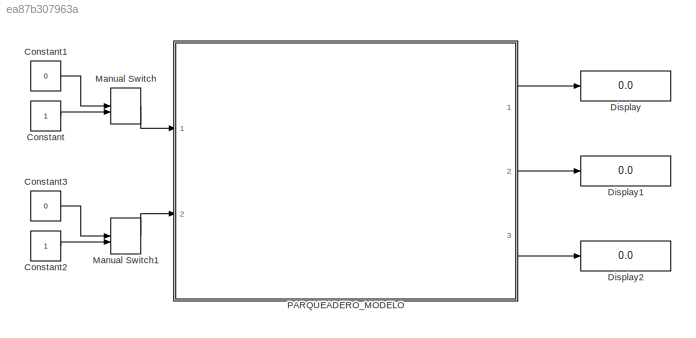
MODEL slx_ea87b307963a
KIND model
CONFIG AbsTol = auto
CONFIG EnableMultiTasking = off
CONFIG FixedStep = auto
CONFIG MaxStep = auto
CONFIG MinStep = auto
CONFIG RelTol = 1e-3
CONFIG SampleTimeConstraint = Unconstrained
CONFIG SolverName = VariableStepAuto
CONFIG StartTime = 0.0
CONFIG StopTime = inf
BLOCK [Constant] Constant
BLOCK [Constant] Constant1
  Value = 0
BLOCK [Constant] Constant2
BLOCK [Constant] Constant3
  Value = 0
BLOCK [Display] Display
  Decimation = 1
  Ports = [1]
BLOCK [Display] Display1
  Decimation = 1
  Ports = [1]
BLOCK [Display] Display2
  Decimation = 1
  Ports = [1]
BLOCK [ManualSwitch] Manual Switch
BLOCK [ManualSwitch] Manual Switch1
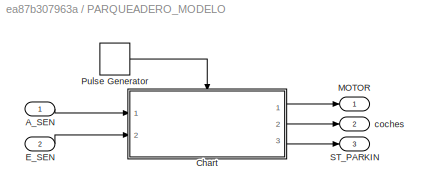
BLOCK [SubSystem] PARQUEADERO_MODELO 
  Ports = [2, 3]
  RequestExecContextInheritance = off
BLOCK [Inport] PARQUEADERO_MODELO /A_SEN
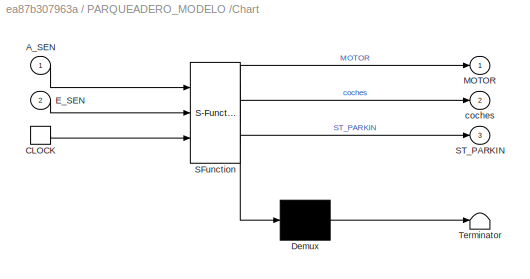
BLOCK [SubSystem] PARQUEADERO_MODELO /Chart
  ErrorFcn = Stateflow.Translate.translate
  PermitHierarchicalResolution = ExplicitOnly
  Ports = [2, 3, 0, 1]
  RequestExecContextInheritance = off
  SFBlockType = Chart
  TreatAsAtomicUnit = on
BLOCK [Demux] PARQUEADERO_MODELO /Chart/ Demux 
  Outputs = 1
  Ports = [1, 1]
BLOCK [S-Function] PARQUEADERO_MODELO /Chart/ SFunction 
  EnableBusSupport = on
  FunctionName = sf_sfun
  PortCounts = [3 4]
  Ports = [3, 4]
  SFcnIsStateOwnerBlock = off
  SFunctionDeploymentMode = off
  Tag = Stateflow S-Function 3
BLOCK [Terminator] PARQUEADERO_MODELO /Chart/ Terminator 
BLOCK [Inport] PARQUEADERO_MODELO /Chart/A_SEN
BLOCK [TriggerPort] PARQUEADERO_MODELO /Chart/CLOCK
  Ports = [0, 1]
  ShowOutputPort = on
  StatesWhenEnabling = held
  TriggerType = either
  VariantControl = (inherit)
BLOCK [Inport] PARQUEADERO_MODELO /Chart/E_SEN
  Port = 2
BLOCK [Outport] PARQUEADERO_MODELO /Chart/MOTOR
BLOCK [Outport] PARQUEADERO_MODELO /Chart/ST_PARKIN
  Port = 3
BLOCK [Outport] PARQUEADERO_MODELO /Chart/coches
  Port = 2
BLOCK [Inport] PARQUEADERO_MODELO /E_SEN
  Port = 2
BLOCK [Outport] PARQUEADERO_MODELO /MOTOR
BLOCK [DiscretePulseGenerator] PARQUEADERO_MODELO /Pulse Generator
  Period = 0.1
  Ports = [0, 1]
  PulseType = Time based
  PulseWidth = 5
BLOCK [Outport] PARQUEADERO_MODELO /ST_PARKIN
  Port = 3
BLOCK [Outport] PARQUEADERO_MODELO /coches
  Port = 2
LINE Constant1:1 -> Manual Switch:1
LINE Constant2:1 -> Manual Switch1:2
LINE Constant3:1 -> Manual Switch1:1
LINE Constant:1 -> Manual Switch:2
LINE Manual Switch1:1 -> PARQUEADERO_MODELO :2
LINE Manual Switch:1 -> PARQUEADERO_MODELO :1
LINE PARQUEADERO_MODELO /A_SEN:1 -> PARQUEADERO_MODELO /Chart:1
LINE PARQUEADERO_MODELO /Chart:1 -> PARQUEADERO_MODELO /MOTOR:1
LINE PARQUEADERO_MODELO /Chart:2 -> PARQUEADERO_MODELO /coches:1
LINE PARQUEADERO_MODELO /Chart:3 -> PARQUEADERO_MODELO /ST_PARKIN:1
LINE PARQUEADERO_MODELO /E_SEN:1 -> PARQUEADERO_MODELO /Chart:2
LINE PARQUEADERO_MODELO /Pulse Generator:1 -> PARQUEADERO_MODELO /Chart:trigger
LINE PARQUEADERO_MODELO :1 -> Display:1
LINE PARQUEADERO_MODELO :2 -> Display1:1
LINE PARQUEADERO_MODELO :3 -> Display2:1
CHART PARQUEADERO_MODELO
/Chart states=11 transitions=14
  STATE_LABEL 'inicio_\nentry:\nnumero_coches=0;\ncoches=0;\nMOTOR=0;\nST_PARKIN=1;\nON_OFF=1;'
  STATE_LABEL 'OCUPADO\n\n'
  STATE_LABEL 'inicio\nentry:\nST_PARKIN=0;\nMOTOR=0;'
  STATE_LABEL 'RESTAR_COCHES\nentry:\nnumero_coches=numero_coches-1;\ncoches=numero_coches;'
  STATE_LABEL 'PASO_LIBRE\nentry:\nON_OFF=1;'
  STATE_LABEL '[E_SEN==1]'
  STATE_LABEL '[E_SEN==0]'
  STATE_LABEL 'inicio\nentry:\nST_PARKIN=0;\nMOTOR=0;'
  STATE_LABEL 'RESTAR_COCHES\nentry:\nnumero_coches=numero_coches-1;\ncoches=numero_coches;'
  STATE_LABEL 'PASO_LIBRE\nentry:\nON_OFF=1;'
  STATE_LABEL 'LIBRE'
  STATE_LABEL 'inicio\nentry:\nST_PARKIN=0;\nMOTOR=0;\n'
  STATE_LABEL 'RESTAR_COCHES\nentry:\nnumero_coches=numero_coches-1;\ncoches=numero_coches;'
  STATE_LABEL 'SUMAR_COCHES1\nentry:\nnumero_coches=numero_coches+1;\ncoches=numero_coches;\nMOTOR=1;'
  STATE_LABEL 'CERRAR_PUERTA\nentry:\nMOTOR=0;'
  STATE_LABEL 'paso_ocupado\nentry:\nON_OFF=0;\n'
  STATE_LABEL '[E_SEN==0]'
  STATE_LABEL '[E_SEN==1]'
  STATE_LABEL '[A_SEN==1]'
  STATE_LABEL '[A_SEN==0]'
  STATE_LABEL '[numero_coches==10]'
  STATE_LABEL 'inicio\nentry:\nST_PARKIN=0;\nMOTOR=0;\n'
  STATE_LABEL 'RESTAR_COCHES\nentry:\nnumero_coches=numero_coches-1;\ncoches=numero_coches;'
  STATE_LABEL 'SUMAR_COCHES1\nentry:\nnumero_coches=numero_coches+1;\ncoches=numero_coches;\nMOTOR=1;'
  STATE_LABEL 'CERRAR_PUERTA\nentry:\nMOTOR=0;'
  STATE_LABEL 'paso_ocupado\nentry:\nON_OFF=0;\n'
CHART  states=0 transitions=0
